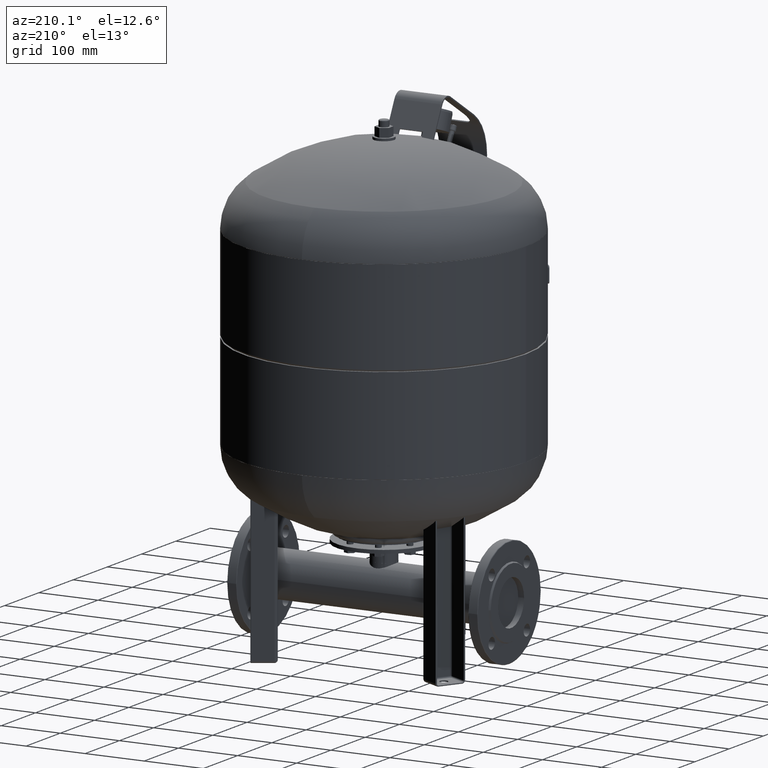
[diagram: clean part render]
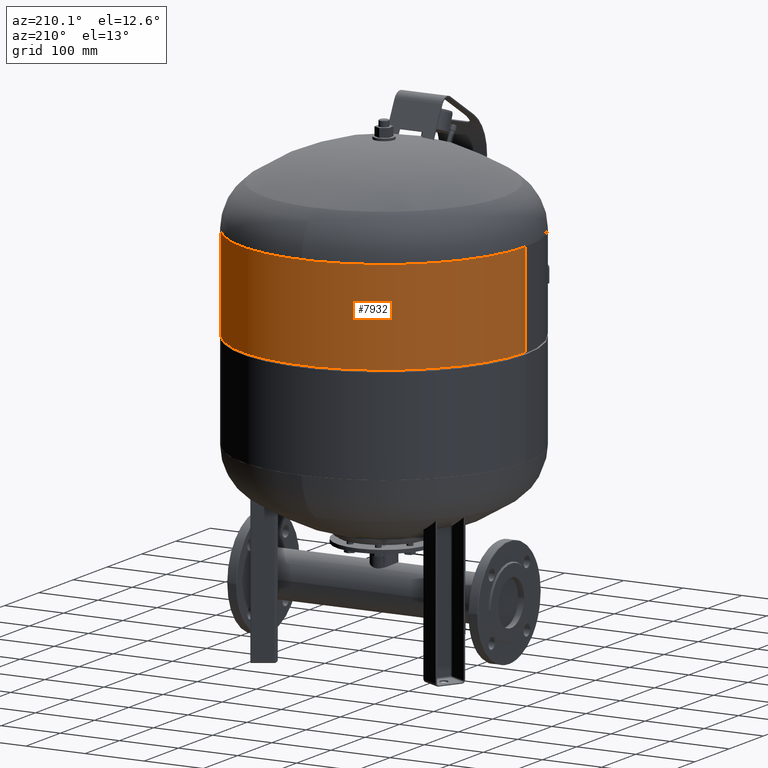
[diagram: same view with one face highlighted and labeled with its STEP entity id]
A machine part, auxiliary view. The second image highlights one B-rep face of the part: STEP entity #7932.
In plain terms, the highlighted cylindrical surface (partial cylindrical patch) has radius 240 mm, axis along (0, 0, 1).
Its self-contained STEP definition (entity closure, byte-faithful):
#7732=CARTESIAN_POINT('',(239.999999999999970,-2.204364E-014,647.0));
#7733=VERTEX_POINT('',#7732);
#7734=CARTESIAN_POINT('',(240.0,-5.510911E-016,488.500000000000000));
#7735=VERTEX_POINT('',#7734);
#7736=CARTESIAN_POINT('',(239.999999999999970,-2.204364E-014,647.0));
#7737=DIRECTION('',(0.0,0.0,-1.0));
#7738=VECTOR('',#7737,158.500000000000000);
#7739=LINE('',#7736,#7738);
#7740=EDGE_CURVE('',#7733,#7735,#7739,.T.);
#7742=CARTESIAN_POINT('',(-240.000000000000030,-5.143419E-014,647.0));
#7743=VERTEX_POINT('',#7742);
#7751=CARTESIAN_POINT('',(-240.0,2.883946E-014,488.500000000000000));
#7752=VERTEX_POINT('',#7751);
#7753=CARTESIAN_POINT('',(-240.000000000000030,-5.143419E-014,647.0));
#7754=DIRECTION('',(0.0,0.0,-1.0));
#7755=VECTOR('',#7754,158.500000000000000);
#7756=LINE('',#7753,#7755);
#7757=EDGE_CURVE('',#7743,#7752,#7756,.T.);
#7839=CARTESIAN_POINT('',(-3.673940E-016,-5.510911E-016,488.500000000000000));
#7840=DIRECTION('',(0.0,0.0,-1.0));
#7841=DIRECTION('',(1.0,0.0,0.0));
#7842=AXIS2_PLACEMENT_3D('',#7839,#7840,#7841);
#7843=CIRCLE('',#7842,240.0);
#7844=EDGE_CURVE('',#7752,#7735,#7843,.T.);
#7915=CARTESIAN_POINT('',(-1.469576E-014,-2.204364E-014,605.500000000000000));
#7916=DIRECTION('',(0.0,0.0,1.0));
#7917=DIRECTION('',(1.0,0.0,0.0));
#7918=AXIS2_PLACEMENT_3D('',#7915,#7916,#7917);
#7919=CYLINDRICAL_SURFACE('',#7918,240.0);
#7920=ORIENTED_EDGE('',*,*,#7740,.T.);
#7921=ORIENTED_EDGE('',*,*,#7844,.F.);
#7922=ORIENTED_EDGE('',*,*,#7757,.F.);
#7923=CARTESIAN_POINT('',(-1.469576E-014,-2.204364E-014,647.0));
#7924=DIRECTION('',(0.0,0.0,-1.0));
#7925=DIRECTION('',(1.0,0.0,0.0));
#7926=AXIS2_PLACEMENT_3D('',#7923,#7924,#7925);
#7927=CIRCLE('',#7926,240.0);
#7928=EDGE_CURVE('',#7743,#7733,#7927,.T.);
#7929=ORIENTED_EDGE('',*,*,#7928,.T.);
#7930=EDGE_LOOP('',(#7920,#7921,#7922,#7929));
#7931=FACE_OUTER_BOUND('',#7930,.T.);
#7932=ADVANCED_FACE('',(#7931),#7919,.T.);